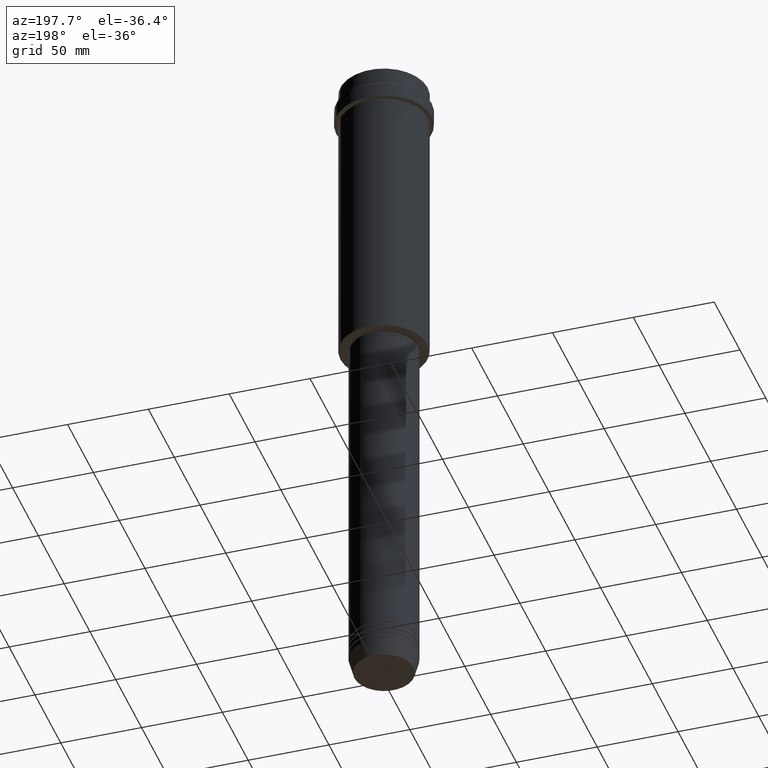
[diagram: clean part render]
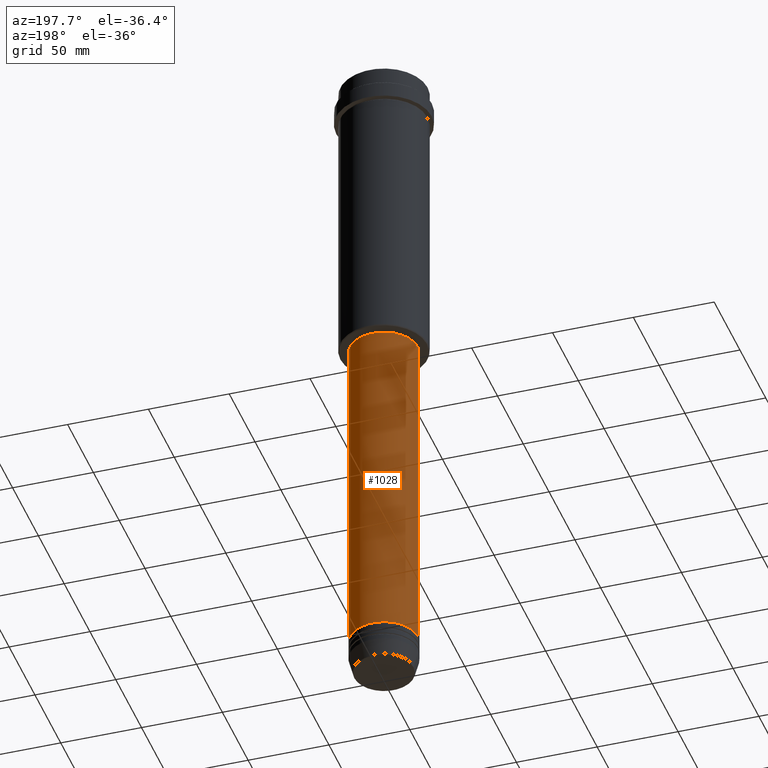
[diagram: same view with one face highlighted and labeled with its STEP entity id]
A machine part, auxiliary view. The second image highlights one B-rep face of the part: STEP entity #1028.
In plain terms, the highlighted cylindrical surface (edge-blend (fillet) strip) has radius 21 mm, axis along (-0, -0, 1).
Its self-contained STEP definition (entity closure, byte-faithful):
#9 = CIRCLE ( 'NONE', #465, 21.00000000000000000 ) ;
#77 = EDGE_LOOP ( 'NONE', ( #809, #1030, #1324, #904 ) ) ;
#143 = CARTESIAN_POINT ( 'NONE',  ( 21.00000000000000000, 0.000000000000000000, -400.9999999999998295 ) ) ;
#196 = CARTESIAN_POINT ( 'NONE',  ( -21.00000000000000000, 2.571758278209441661E-15, -188.9999999999999147 ) ) ;
#280 = LINE ( 'NONE', #722, #799 ) ;
#394 = VECTOR ( 'NONE', #1411, 1000.000000000000000 ) ;
#461 = EDGE_CURVE ( 'NONE', #1286, #644, #547, .T. ) ;
#465 = AXIS2_PLACEMENT_3D ( 'NONE', #671, #876, #772 ) ;
#478 = CARTESIAN_POINT ( 'NONE',  ( -21.00000000000000000, 2.571758278209441661E-15, -400.9999999999998295 ) ) ;
#501 = CARTESIAN_POINT ( 'NONE',  ( 0.000000000000000000, 0.000000000000000000, 0.000000000000000000 ) ) ;
#508 = DIRECTION ( 'NONE',  ( 1.000000000000000000, 0.000000000000000000, 0.000000000000000000 ) ) ;
#547 = LINE ( 'NONE', #978, #394 ) ;
#624 = VERTEX_POINT ( 'NONE', #478 ) ;
#644 = VERTEX_POINT ( 'NONE', #813 ) ;
#646 = DIRECTION ( 'NONE',  ( 1.000000000000000000, 0.000000000000000000, 0.000000000000000000 ) ) ;
#670 = CARTESIAN_POINT ( 'NONE',  ( 0.000000000000000000, 0.000000000000000000, -400.9999999999998295 ) ) ;
#671 = CARTESIAN_POINT ( 'NONE',  ( 0.000000000000000000, 0.000000000000000000, -188.9999999999999147 ) ) ;
#722 = CARTESIAN_POINT ( 'NONE',  ( -21.00000000000000000, 2.571758278209441661E-15, 0.000000000000000000 ) ) ;
#740 = DIRECTION ( 'NONE',  ( -0.000000000000000000, -0.000000000000000000, 1.000000000000000000 ) ) ;
#771 = DIRECTION ( 'NONE',  ( -0.000000000000000000, -0.000000000000000000, 1.000000000000000000 ) ) ;
#772 = DIRECTION ( 'NONE',  ( 1.000000000000000000, 0.000000000000000000, 0.000000000000000000 ) ) ;
#799 = VECTOR ( 'NONE', #1146, 1000.000000000000000 ) ;
#806 = EDGE_CURVE ( 'NONE', #644, #989, #9, .T. ) ;
#809 = ORIENTED_EDGE ( 'NONE', *, *, #1138, .T. ) ;
#813 = CARTESIAN_POINT ( 'NONE',  ( 21.00000000000000000, 0.000000000000000000, -188.9999999999999147 ) ) ;
#835 = FACE_OUTER_BOUND ( 'NONE', #77, .T. ) ;
#876 = DIRECTION ( 'NONE',  ( -0.000000000000000000, -0.000000000000000000, 1.000000000000000000 ) ) ;
#904 = ORIENTED_EDGE ( 'NONE', *, *, #461, .F. ) ;
#910 = AXIS2_PLACEMENT_3D ( 'NONE', #670, #771, #646 ) ;
#978 = CARTESIAN_POINT ( 'NONE',  ( 21.00000000000000000, 0.000000000000000000, 0.000000000000000000 ) ) ;
#989 = VERTEX_POINT ( 'NONE', #196 ) ;
#1028 = ADVANCED_FACE ( 'NONE', ( #835 ), #1255, .T. ) ;
#1030 = ORIENTED_EDGE ( 'NONE', *, *, #1101, .T. ) ;
#1101 = EDGE_CURVE ( 'NONE', #624, #989, #280, .T. ) ;
#1138 = EDGE_CURVE ( 'NONE', #1286, #624, #1157, .T. ) ;
#1146 = DIRECTION ( 'NONE',  ( -0.000000000000000000, -0.000000000000000000, 1.000000000000000000 ) ) ;
#1157 = CIRCLE ( 'NONE', #910, 21.00000000000000000 ) ;
#1231 = AXIS2_PLACEMENT_3D ( 'NONE', #501, #740, #508 ) ;
#1255 = CYLINDRICAL_SURFACE ( 'NONE', #1231, 21.00000000000000000 ) ;
#1286 = VERTEX_POINT ( 'NONE', #143 ) ;
#1324 = ORIENTED_EDGE ( 'NONE', *, *, #806, .F. ) ;
#1411 = DIRECTION ( 'NONE',  ( -0.000000000000000000, -0.000000000000000000, 1.000000000000000000 ) ) ;